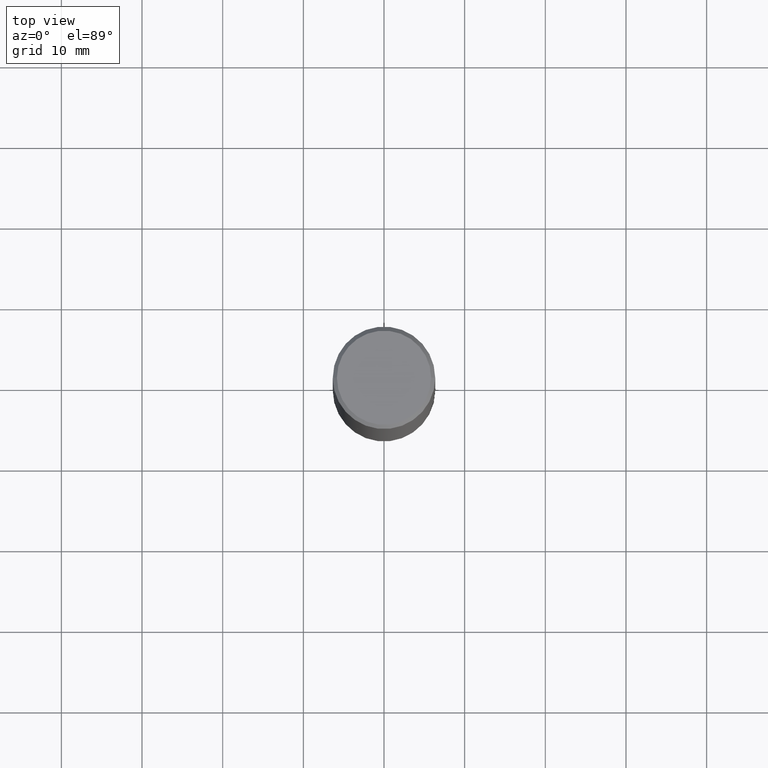
[diagram: clean part render]
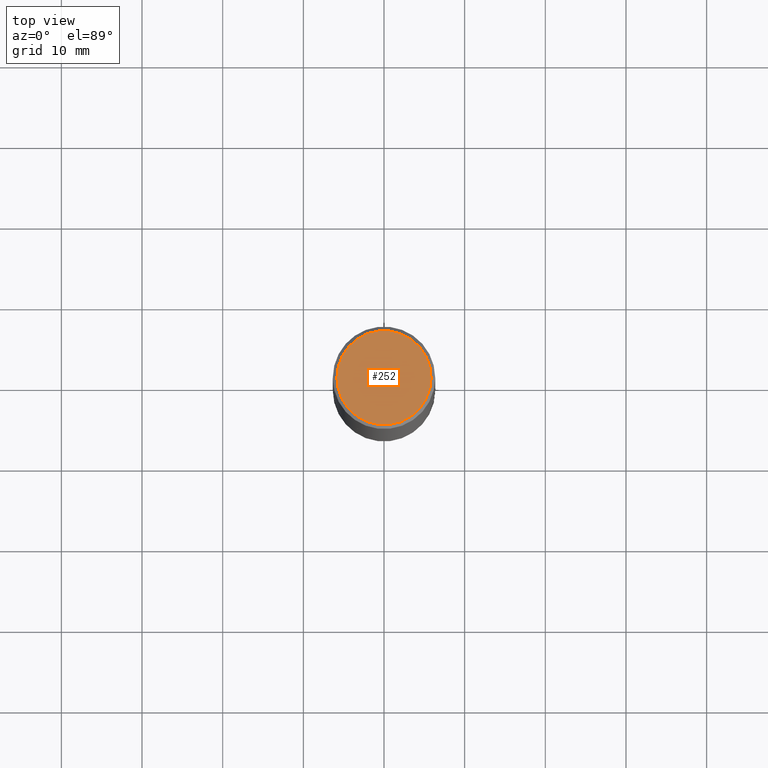
[diagram: same view with one face highlighted and labeled with its STEP entity id]
A machine part, top view. The second image highlights one B-rep face of the part: STEP entity #252.
In plain terms, the highlighted planar face has unit normal (0, -0, -1).
Its self-contained STEP definition (entity closure, byte-faithful):
#7 = CARTESIAN_POINT ( 'NONE',  ( 0.2299999999999998435, -1.681434332853597631E-15, -2.987958743069138192E-17 ) ) ;
#10 = ORIENTED_EDGE ( 'NONE', *, *, #168, .T. ) ;
#25 = EDGE_LOOP ( 'NONE', ( #10, #196 ) ) ;
#65 = VERTEX_POINT ( 'NONE', #7 ) ;
#66 = CARTESIAN_POINT ( 'NONE',  ( 1.606081415867840081E-15, 0.2299999999999998435, -8.179805016492743936E-16 ) ) ;
#69 = DIRECTION ( 'NONE',  ( 2.438088387897960049E-29, -3.491481338843145188E-15, -1.000000000000000000 ) ) ;
#94 = FACE_OUTER_BOUND ( 'NONE', #25, .T. ) ;
#122 = CIRCLE ( 'NONE', #136, 0.2299999999999998435 ) ;
#128 = PLANE ( 'NONE',  #131 ) ;
#131 = AXIS2_PLACEMENT_3D ( 'NONE', #66, #69, #154 ) ;
#136 = AXIS2_PLACEMENT_3D ( 'NONE', #300, #191, #189 ) ;
#154 = DIRECTION ( 'NONE',  ( -1.000000000000000000, 6.982962677686265922E-15, -4.876176775795935793E-29 ) ) ;
#164 = DIRECTION ( 'NONE',  ( 1.000000000000000000, -6.982962677686266711E-15, 4.875813741439103137E-29 ) ) ;
#168 = EDGE_CURVE ( 'NONE', #364, #65, #122, .T. ) ;
#189 = DIRECTION ( 'NONE',  ( 1.000000000000000000, -6.982962677686266711E-15, 4.875813741439103137E-29 ) ) ;
#191 = DIRECTION ( 'NONE',  ( -2.445468806185136597E-29, 3.491481338843145583E-15, 1.000000000000000000 ) ) ;
#196 = ORIENTED_EDGE ( 'NONE', *, *, #339, .T. ) ;
#251 = CARTESIAN_POINT ( 'NONE',  ( -0.2299999999999998435, 1.640996229256271139E-15, -2.987958743071423423E-17 ) ) ;
#252 = ADVANCED_FACE ( 'NONE', ( #94 ), #128, .F. ) ;
#279 = CIRCLE ( 'NONE', #282, 0.2299999999999998435 ) ;
#282 = AXIS2_PLACEMENT_3D ( 'NONE', #342, #347, #164 ) ;
#300 = CARTESIAN_POINT ( 'NONE',  ( 7.306959900346538153E-46, -1.043240219266313067E-31, -2.987958743070287587E-17 ) ) ;
#339 = EDGE_CURVE ( 'NONE', #65, #364, #279, .T. ) ;
#342 = CARTESIAN_POINT ( 'NONE',  ( 7.306959900346538153E-46, -1.043240219266313067E-31, -2.987958743070287587E-17 ) ) ;
#347 = DIRECTION ( 'NONE',  ( -2.445468806185136597E-29, 3.491481338843145583E-15, 1.000000000000000000 ) ) ;
#364 = VERTEX_POINT ( 'NONE', #251 ) ;